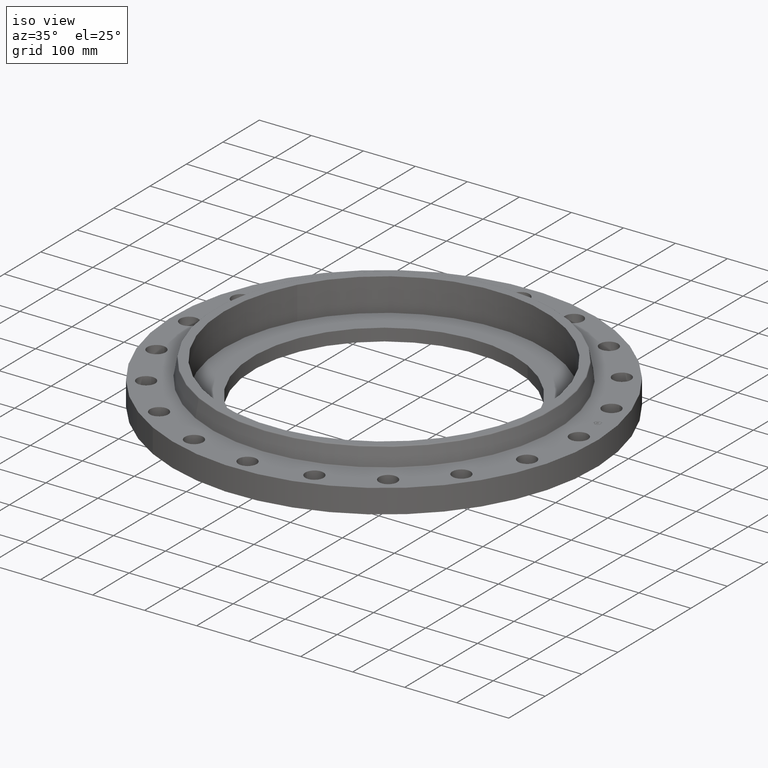
[diagram: clean part render]
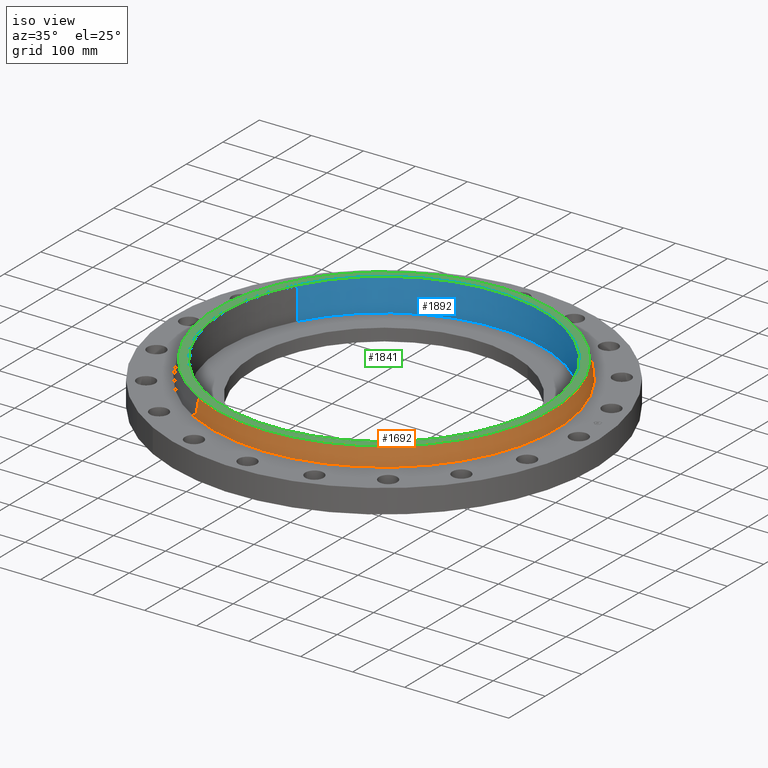
[diagram: same view with three faces highlighted in distinct colors, each labeled with its STEP entity id]
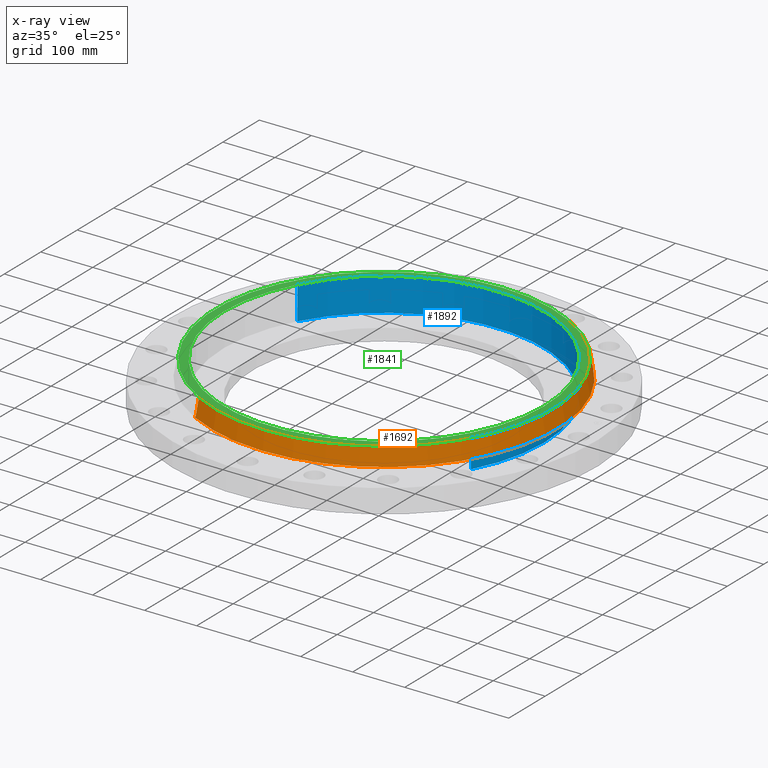
[diagram: x-ray of the same camera — body ghosted, the three highlighted faces saturated]
A machine part, iso view with three faces highlighted in distinct colors.
The next image is the same camera in x-ray (body ghosted, the three faces saturated) — at least one of them is partly hidden behind the body in this view.
Their STEP definitions:

[orange] entity #1692 — the highlighted conical surface has half-angle 10 deg.
#1585=AXIS2_PLACEMENT_3D('Circle Axis2P3D',#1583,#1584,$) ;
#1665=AXIS2_PLACEMENT_3D('Cone Axis2P3D',#1662,#1663,#1664) ;
#1676=AXIS2_PLACEMENT_3D('Circle Axis2P3D',#1674,#1675,$) ;
#1580=CARTESIAN_POINT('Vertex',(6.25710616251,11.4535560039,1.85958110935)) ;
#1583=CARTESIAN_POINT('Axis2P3D Location',(0.,0.,1.85958110935)) ;
#1587=CARTESIAN_POINT('Vertex',(-6.25710616251,-11.4535560039,1.85958110935)) ;
#1662=CARTESIAN_POINT('Axis2P3D Location',(0.,0.,3.14041889067)) ;
#1667=CARTESIAN_POINT('Line Origine',(6.20296793039,11.3544566347,2.50000000001)) ;
#1671=CARTESIAN_POINT('Vertex',(6.14882969826,11.2553572656,3.14041889067)) ;
#1674=CARTESIAN_POINT('Axis2P3D Location',(0.,0.,3.14041889067)) ;
#1678=CARTESIAN_POINT('Vertex',(-6.14882969826,-11.2553572656,3.14041889067)) ;
#1681=CARTESIAN_POINT('Line Origine',(-6.20296793039,-11.3544566347,2.50000000001)) ;
#1584=DIRECTION('Axis2P3D Direction',(0.,0.,-0.0393700787402)) ;
#1663=DIRECTION('Axis2P3D Direction',(0.,0.,-0.0393700787402)) ;
#1664=DIRECTION('Axis2P3D XDirection',(-0.0188750212049,-0.0345504945626,0.)) ;
#1668=DIRECTION('Vector Direction',(0.00327761303565,0.00599963041829,-0.03877195878)) ;
#1675=DIRECTION('Axis2P3D Direction',(0.,0.,-0.0393700787402)) ;
#1682=DIRECTION('Vector Direction',(-0.00327761303565,-0.00599963041829,-0.03877195878)) ;
#1669=VECTOR('Line Direction',#1668,0.0393700787402) ;
#1683=VECTOR('Line Direction',#1682,0.0393700787402) ;
#1687=ORIENTED_EDGE('',*,*,#1589,.F.) ;
#1688=ORIENTED_EDGE('',*,*,#1673,.T.) ;
#1689=ORIENTED_EDGE('',*,*,#1680,.T.) ;
#1690=ORIENTED_EDGE('',*,*,#1685,.F.) ;
#1692=ADVANCED_FACE('PartBody',(#1691),#1666,.T.) ;
#1586=CIRCLE('generated circle',#1585,13.0512575127) ;
#1677=CIRCLE('generated circle',#1676,12.825411254) ;
#1666=CONICAL_SURFACE('Cone',#1665,12.825411254,0.174532925199) ;
#1589=EDGE_CURVE('',#1581,#1588,#1586,.T.) ;
#1673=EDGE_CURVE('',#1581,#1672,#1670,.F.) ;
#1680=EDGE_CURVE('',#1672,#1679,#1677,.T.) ;
#1685=EDGE_CURVE('',#1588,#1679,#1684,.F.) ;
#1686=EDGE_LOOP('',(#1687,#1688,#1689,#1690)) ;
#1691=FACE_OUTER_BOUND('',#1686,.T.) ;
#1670=LINE('Line',#1667,#1669) ;
#1684=LINE('Line',#1681,#1683) ;
#1581=VERTEX_POINT('',#1580) ;
#1588=VERTEX_POINT('',#1587) ;
#1672=VERTEX_POINT('',#1671) ;
#1679=VERTEX_POINT('',#1678) ;

[blue] entity #1892 — the highlighted cylindrical surface (partial cylindrical patch) has radius 307.975 mm, axis along (0, 0, -1).
#42=AXIS2_PLACEMENT_3D('Circle Axis2P3D',#40,#41,$) ;
#1825=AXIS2_PLACEMENT_3D('Circle Axis2P3D',#1823,#1824,$) ;
#1874=AXIS2_PLACEMENT_3D('Cylinder Axis2P3D',#1871,#1872,#1873) ;
#40=CARTESIAN_POINT('Axis2P3D Location',(1.04902962957E-016,-6.99353086378E-017,0.690000000003)) ;
#44=CARTESIAN_POINT('Vertex',(-10.640688563,5.8130346556,0.690000000003)) ;
#46=CARTESIAN_POINT('Vertex',(10.640688563,-5.8130346556,0.690000000003)) ;
#1823=CARTESIAN_POINT('Axis2P3D Location',(2.79741234551E-016,0.,3.19000000001)) ;
#1827=CARTESIAN_POINT('Vertex',(-10.640688563,5.8130346556,3.19000000001)) ;
#1829=CARTESIAN_POINT('Vertex',(10.640688563,-5.8130346556,3.19000000001)) ;
#1871=CARTESIAN_POINT('Axis2P3D Location',(1.04902962957E-016,-6.99353086378E-017,3.18606299214)) ;
#1876=CARTESIAN_POINT('Line Origine',(-10.640688563,5.8130346556,1.94000000001)) ;
#1881=CARTESIAN_POINT('Line Origine',(10.640688563,-5.8130346556,1.94000000001)) ;
#41=DIRECTION('Axis2P3D Direction',(0.,0.,-0.0393700787402)) ;
#1824=DIRECTION('Axis2P3D Direction',(0.,0.,-0.0393700787402)) ;
#1872=DIRECTION('Axis2P3D Direction',(0.,0.,-0.0393700787402)) ;
#1873=DIRECTION('Axis2P3D XDirection',(0.0345504945626,-0.0188750212049,0.)) ;
#1877=DIRECTION('Vector Direction',(0.,0.,-0.0393700787402)) ;
#1882=DIRECTION('Vector Direction',(0.,0.,-0.0393700787402)) ;
#1878=VECTOR('Line Direction',#1877,0.0393700787402) ;
#1883=VECTOR('Line Direction',#1882,0.0393700787402) ;
#1887=ORIENTED_EDGE('',*,*,#1831,.F.) ;
#1888=ORIENTED_EDGE('',*,*,#1880,.F.) ;
#1889=ORIENTED_EDGE('',*,*,#48,.T.) ;
#1890=ORIENTED_EDGE('',*,*,#1885,.T.) ;
#1892=ADVANCED_FACE('PartBody',(#1891),#1875,.F.) ;
#43=CIRCLE('generated circle',#42,12.125) ;
#1826=CIRCLE('generated circle',#1825,12.125) ;
#1875=CYLINDRICAL_SURFACE('generated cylinder',#1874,12.125) ;
#48=EDGE_CURVE('',#45,#47,#43,.T.) ;
#1831=EDGE_CURVE('',#1828,#1830,#1826,.T.) ;
#1880=EDGE_CURVE('',#45,#1828,#1879,.F.) ;
#1885=EDGE_CURVE('',#47,#1830,#1884,.F.) ;
#1886=EDGE_LOOP('',(#1887,#1888,#1889,#1890)) ;
#1891=FACE_OUTER_BOUND('',#1886,.T.) ;
#1879=LINE('Line',#1876,#1878) ;
#1884=LINE('Line',#1881,#1883) ;
#45=VERTEX_POINT('',#44) ;
#47=VERTEX_POINT('',#46) ;
#1828=VERTEX_POINT('',#1827) ;
#1830=VERTEX_POINT('',#1829) ;

[green] entity #1841 — the highlighted planar face has unit normal (0, 0, -1).
#1762=AXIS2_PLACEMENT_3D('Circle Axis2P3D',#1760,#1761,$) ;
#1781=AXIS2_PLACEMENT_3D('Circle Axis2P3D',#1779,#1780,$) ;
#1817=AXIS2_PLACEMENT_3D('Plane Axis2P3D',#1814,#1815,#1816) ;
#1825=AXIS2_PLACEMENT_3D('Circle Axis2P3D',#1823,#1824,$) ;
#1834=AXIS2_PLACEMENT_3D('Circle Axis2P3D',#1832,#1833,$) ;
#1757=CARTESIAN_POINT('Vertex',(6.12050117902,11.2035022589,3.19000000001)) ;
#1760=CARTESIAN_POINT('Axis2P3D Location',(0.,0.,3.19000000001)) ;
#1764=CARTESIAN_POINT('Vertex',(-6.12050117902,-11.2035022589,3.19000000001)) ;
#1779=CARTESIAN_POINT('Axis2P3D Location',(0.,0.,3.19000000001)) ;
#1814=CARTESIAN_POINT('Axis2P3D Location',(0.,12.7663227888,3.19000000001)) ;
#1823=CARTESIAN_POINT('Axis2P3D Location',(2.79741234551E-016,0.,3.19000000001)) ;
#1827=CARTESIAN_POINT('Vertex',(-10.640688563,5.8130346556,3.19000000001)) ;
#1829=CARTESIAN_POINT('Vertex',(10.640688563,-5.8130346556,3.19000000001)) ;
#1832=CARTESIAN_POINT('Axis2P3D Location',(8.39223703654E-016,-2.23792987641E-015,3.19000000001)) ;
#1761=DIRECTION('Axis2P3D Direction',(0.,0.,-0.0393700787402)) ;
#1780=DIRECTION('Axis2P3D Direction',(0.,0.,-0.0393700787402)) ;
#1815=DIRECTION('Axis2P3D Direction',(0.,0.,-0.0393700787402)) ;
#1816=DIRECTION('Axis2P3D XDirection',(0.0393700787402,0.,0.)) ;
#1824=DIRECTION('Axis2P3D Direction',(0.,0.,-0.0393700787402)) ;
#1833=DIRECTION('Axis2P3D Direction',(0.,0.,-0.0393700787402)) ;
#1820=ORIENTED_EDGE('',*,*,#1766,.F.) ;
#1821=ORIENTED_EDGE('',*,*,#1783,.F.) ;
#1838=ORIENTED_EDGE('',*,*,#1831,.T.) ;
#1839=ORIENTED_EDGE('',*,*,#1836,.T.) ;
#1840=FACE_BOUND('',#1837,.T.) ;
#1841=ADVANCED_FACE('PartBody',(#1822,#1840),#1818,.F.) ;
#1763=CIRCLE('generated circle',#1762,12.7663227888) ;
#1782=CIRCLE('generated circle',#1781,12.7663227888) ;
#1826=CIRCLE('generated circle',#1825,12.125) ;
#1835=CIRCLE('generated circle',#1834,12.125) ;
#1766=EDGE_CURVE('',#1758,#1765,#1763,.T.) ;
#1783=EDGE_CURVE('',#1765,#1758,#1782,.T.) ;
#1831=EDGE_CURVE('',#1828,#1830,#1826,.T.) ;
#1836=EDGE_CURVE('',#1830,#1828,#1835,.T.) ;
#1819=EDGE_LOOP('',(#1820,#1821)) ;
#1837=EDGE_LOOP('',(#1838,#1839)) ;
#1822=FACE_OUTER_BOUND('',#1819,.T.) ;
#1818=PLANE('',#1817) ;
#1758=VERTEX_POINT('',#1757) ;
#1765=VERTEX_POINT('',#1764) ;
#1828=VERTEX_POINT('',#1827) ;
#1830=VERTEX_POINT('',#1829) ;